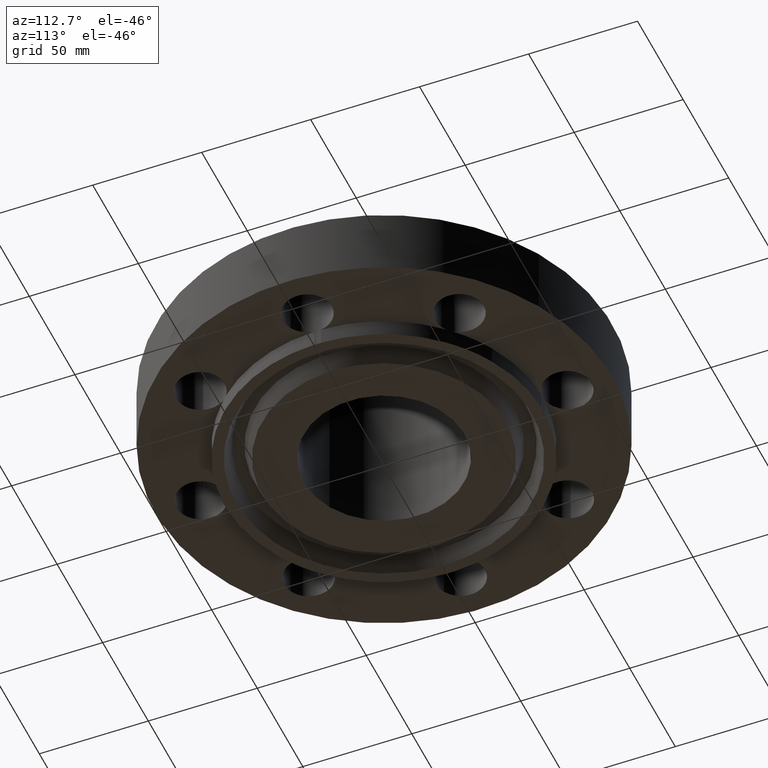
[diagram: clean part render]
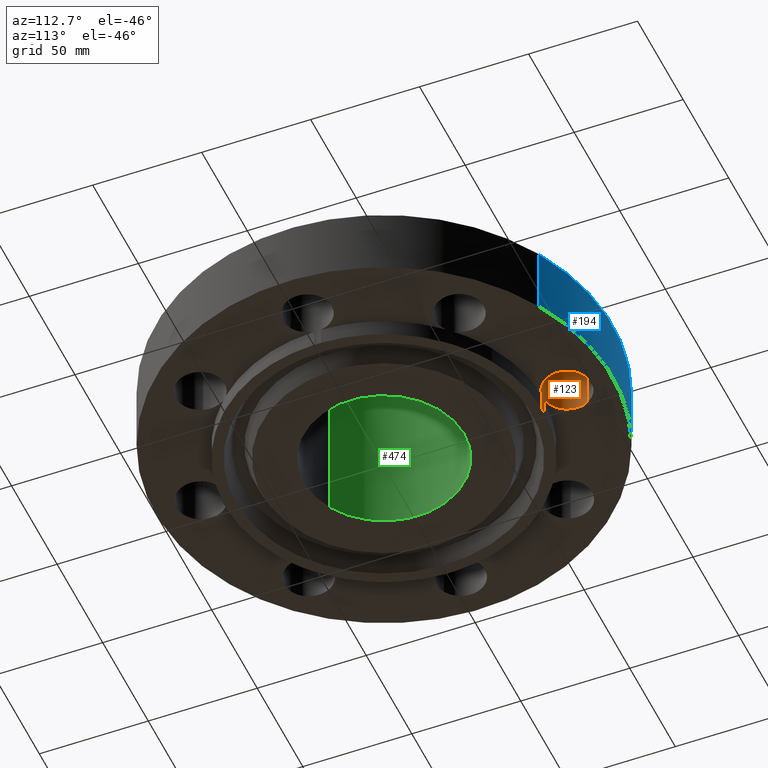
[diagram: same view with three faces highlighted in distinct colors, each labeled with its STEP entity id]
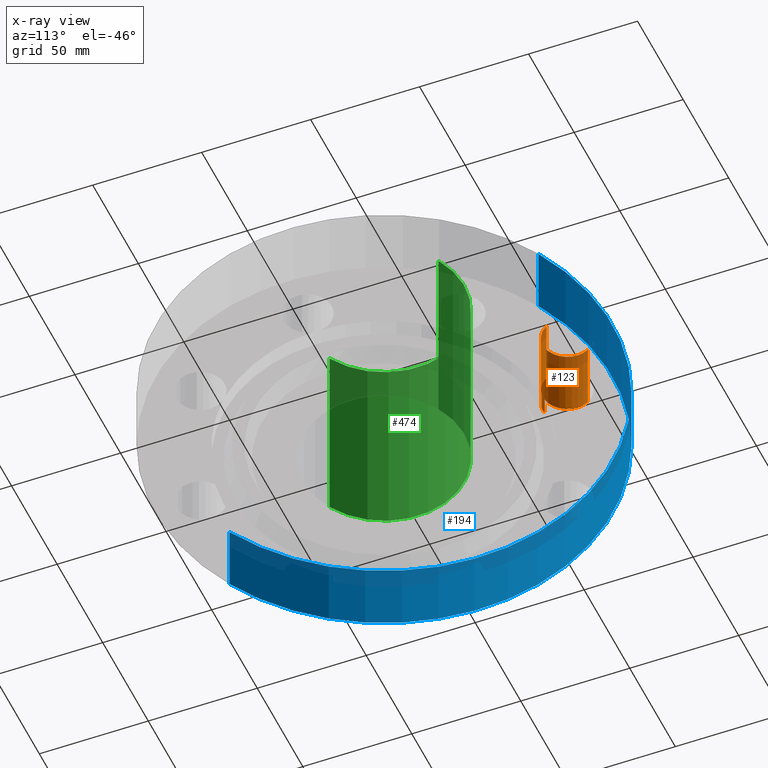
[diagram: x-ray of the same camera — body ghosted, the three highlighted faces saturated]
A machine part, auxiliary view with three faces highlighted in distinct colors.
The next image is the same camera in x-ray (body ghosted, the three faces saturated) — at least one of them is partly hidden behind the body in this view.
Their STEP definitions:

[orange] entity #123 — the highlighted cylindrical surface (edge-blend (fillet) strip) has radius 11.176 mm, axis along (0, -0, -1).
#38=AXIS2_PLACEMENT_3D('Cylinder Axis2P3D',#35,#36,#37) ;
#77=AXIS2_PLACEMENT_3D('Circle Axis2P3D',#75,#76,$) ;
#91=AXIS2_PLACEMENT_3D('Circle Axis2P3D',#89,#90,$) ;
#105=AXIS2_PLACEMENT_3D('Circle Axis2P3D',#103,#104,$) ;
#110=AXIS2_PLACEMENT_3D('Circle Axis2P3D',#108,#109,$) ;
#35=CARTESIAN_POINT('Axis2P3D Location',(0.,3.31000000001,1.24606299213)) ;
#40=CARTESIAN_POINT('Line Origine',(-0.386136327233,3.520947237,0.468500000002)) ;
#44=CARTESIAN_POINT('Vertex',(-0.386136327233,3.520947237,0.)) ;
#46=CARTESIAN_POINT('Vertex',(-0.386136327233,3.520947237,1.25000000001)) ;
#53=CARTESIAN_POINT('Vertex',(0.386136327233,3.09905276303,0.)) ;
#56=CARTESIAN_POINT('Line Origine',(0.386136327233,3.09905276303,0.468500000002)) ;
#60=CARTESIAN_POINT('Vertex',(0.386136327233,3.09905276303,1.25000000001)) ;
#75=CARTESIAN_POINT('Axis2P3D Location',(0.,3.31000000001,0.)) ;
#79=CARTESIAN_POINT('Vertex',(0.0616409036851,2.87433912388,2.79741234551E-016)) ;
#82=CARTESIAN_POINT('Line Origine',(0.0616409036851,2.87433912388,0.468500000002)) ;
#86=CARTESIAN_POINT('Vertex',(0.0616409036851,2.87433912388,-0.313000000001)) ;
#89=CARTESIAN_POINT('Axis2P3D Location',(0.,3.31000000001,-0.313000000001)) ;
#93=CARTESIAN_POINT('Vertex',(-0.0616409036851,2.87433912388,-0.313000000001)) ;
#96=CARTESIAN_POINT('Line Origine',(-0.0616409036851,2.87433912388,0.468500000002)) ;
#100=CARTESIAN_POINT('Vertex',(-0.0616409036851,2.87433912388,2.79741234551E-016)) ;
#103=CARTESIAN_POINT('Axis2P3D Location',(0.,3.31000000001,0.)) ;
#108=CARTESIAN_POINT('Axis2P3D Location',(0.,3.31000000001,1.25000000001)) ;
#36=DIRECTION('Axis2P3D Direction',(0.,-0.,-0.0393700787402)) ;
#37=DIRECTION('Axis2P3D XDirection',(0.0345504945626,-0.0188750212049,0.)) ;
#41=DIRECTION('Vector Direction',(0.,0.,-0.0393700787402)) ;
#57=DIRECTION('Vector Direction',(0.,0.,-0.0393700787402)) ;
#76=DIRECTION('Axis2P3D Direction',(0.,-0.,-0.0393700787402)) ;
#83=DIRECTION('Vector Direction',(0.,0.,-0.0393700787402)) ;
#90=DIRECTION('Axis2P3D Direction',(0.,-0.,-0.0393700787402)) ;
#97=DIRECTION('Vector Direction',(0.,0.,-0.0393700787402)) ;
#104=DIRECTION('Axis2P3D Direction',(0.,-0.,-0.0393700787402)) ;
#109=DIRECTION('Axis2P3D Direction',(0.,-0.,-0.0393700787402)) ;
#42=VECTOR('Line Direction',#41,0.0393700787402) ;
#58=VECTOR('Line Direction',#57,0.0393700787402) ;
#84=VECTOR('Line Direction',#83,0.0393700787402) ;
#98=VECTOR('Line Direction',#97,0.0393700787402) ;
#114=ORIENTED_EDGE('',*,*,#62,.F.) ;
#115=ORIENTED_EDGE('',*,*,#81,.T.) ;
#116=ORIENTED_EDGE('',*,*,#88,.T.) ;
#117=ORIENTED_EDGE('',*,*,#95,.T.) ;
#118=ORIENTED_EDGE('',*,*,#102,.F.) ;
#119=ORIENTED_EDGE('',*,*,#107,.T.) ;
#120=ORIENTED_EDGE('',*,*,#48,.T.) ;
#121=ORIENTED_EDGE('',*,*,#112,.F.) ;
#123=ADVANCED_FACE('PartBody',(#122),#39,.F.) ;
#78=CIRCLE('generated circle',#77,0.440000000002) ;
#92=CIRCLE('generated circle',#91,0.440000000002) ;
#106=CIRCLE('generated circle',#105,0.440000000002) ;
#111=CIRCLE('generated circle',#110,0.440000000002) ;
#39=CYLINDRICAL_SURFACE('generated cylinder',#38,0.440000000002) ;
#48=EDGE_CURVE('',#45,#47,#43,.F.) ;
#62=EDGE_CURVE('',#54,#61,#59,.F.) ;
#81=EDGE_CURVE('',#54,#80,#78,.T.) ;
#88=EDGE_CURVE('',#80,#87,#85,.T.) ;
#95=EDGE_CURVE('',#87,#94,#92,.T.) ;
#102=EDGE_CURVE('',#101,#94,#99,.T.) ;
#107=EDGE_CURVE('',#101,#45,#106,.T.) ;
#112=EDGE_CURVE('',#61,#47,#111,.T.) ;
#113=EDGE_LOOP('',(#114,#115,#116,#117,#118,#119,#120,#121)) ;
#122=FACE_OUTER_BOUND('',#113,.T.) ;
#43=LINE('Line',#40,#42) ;
#59=LINE('Line',#56,#58) ;
#85=LINE('Line',#82,#84) ;
#99=LINE('Line',#96,#98) ;
#45=VERTEX_POINT('',#44) ;
#47=VERTEX_POINT('',#46) ;
#54=VERTEX_POINT('',#53) ;
#61=VERTEX_POINT('',#60) ;
#80=VERTEX_POINT('',#79) ;
#87=VERTEX_POINT('',#86) ;
#94=VERTEX_POINT('',#93) ;
#101=VERTEX_POINT('',#100) ;

[blue] entity #194 — the highlighted cylindrical surface (partial cylindrical patch) has radius 104.775 mm, axis along (0, 0, -1).
#158=AXIS2_PLACEMENT_3D('Cylinder Axis2P3D',#155,#156,#157) ;
#162=AXIS2_PLACEMENT_3D('Circle Axis2P3D',#160,#161,$) ;
#178=AXIS2_PLACEMENT_3D('Circle Axis2P3D',#176,#177,$) ;
#155=CARTESIAN_POINT('Axis2P3D Location',(0.,0.,1.46850000001)) ;
#160=CARTESIAN_POINT('Axis2P3D Location',(0.,0.,0.)) ;
#164=CARTESIAN_POINT('Vertex',(-1.97763034675,-3.62002806781,0.)) ;
#166=CARTESIAN_POINT('Vertex',(1.97763034675,3.62002806781,0.)) ;
#169=CARTESIAN_POINT('Line Origine',(-1.97763034675,-3.62002806781,0.625000000003)) ;
#173=CARTESIAN_POINT('Vertex',(-1.97763034675,-3.62002806781,1.25000000001)) ;
#176=CARTESIAN_POINT('Axis2P3D Location',(0.,0.,1.25000000001)) ;
#180=CARTESIAN_POINT('Vertex',(1.97763034675,3.62002806781,1.25000000001)) ;
#183=CARTESIAN_POINT('Line Origine',(1.97763034675,3.62002806781,0.625000000003)) ;
#156=DIRECTION('Axis2P3D Direction',(0.,0.,-0.0393700787402)) ;
#157=DIRECTION('Axis2P3D XDirection',(0.0188750212049,0.0345504945626,0.)) ;
#161=DIRECTION('Axis2P3D Direction',(0.,0.,-0.0393700787402)) ;
#170=DIRECTION('Vector Direction',(0.,0.,-0.0393700787402)) ;
#177=DIRECTION('Axis2P3D Direction',(0.,0.,-0.0393700787402)) ;
#184=DIRECTION('Vector Direction',(0.,0.,-0.0393700787402)) ;
#171=VECTOR('Line Direction',#170,0.0393700787402) ;
#185=VECTOR('Line Direction',#184,0.0393700787402) ;
#189=ORIENTED_EDGE('',*,*,#168,.F.) ;
#190=ORIENTED_EDGE('',*,*,#175,.T.) ;
#191=ORIENTED_EDGE('',*,*,#182,.T.) ;
#192=ORIENTED_EDGE('',*,*,#187,.F.) ;
#194=ADVANCED_FACE('PartBody',(#193),#159,.T.) ;
#163=CIRCLE('generated circle',#162,4.12500000002) ;
#179=CIRCLE('generated circle',#178,4.12500000002) ;
#159=CYLINDRICAL_SURFACE('generated cylinder',#158,4.12500000002) ;
#168=EDGE_CURVE('',#165,#167,#163,.T.) ;
#175=EDGE_CURVE('',#165,#174,#172,.F.) ;
#182=EDGE_CURVE('',#174,#181,#179,.T.) ;
#187=EDGE_CURVE('',#167,#181,#186,.F.) ;
#188=EDGE_LOOP('',(#189,#190,#191,#192)) ;
#193=FACE_OUTER_BOUND('',#188,.T.) ;
#172=LINE('Line',#169,#171) ;
#186=LINE('Line',#183,#185) ;
#165=VERTEX_POINT('',#164) ;
#167=VERTEX_POINT('',#166) ;
#174=VERTEX_POINT('',#173) ;
#181=VERTEX_POINT('',#180) ;

[green] entity #474 — the highlighted cylindrical surface (partial cylindrical patch) has radius 36.83 mm, axis along (0, 0, -1).
#419=AXIS2_PLACEMENT_3D('Circle Axis2P3D',#417,#418,$) ;
#447=AXIS2_PLACEMENT_3D('Cylinder Axis2P3D',#444,#445,#446) ;
#458=AXIS2_PLACEMENT_3D('Circle Axis2P3D',#456,#457,$) ;
#417=CARTESIAN_POINT('Axis2P3D Location',(0.,0.,3.25000000001)) ;
#421=CARTESIAN_POINT('Vertex',(-0.695167030979,-1.27249471475,3.25000000001)) ;
#423=CARTESIAN_POINT('Vertex',(0.695167030979,1.27249471475,3.25000000001)) ;
#444=CARTESIAN_POINT('Axis2P3D Location',(0.,0.,1.46850000001)) ;
#449=CARTESIAN_POINT('Line Origine',(-0.695167030979,-1.27249471475,1.46850000001)) ;
#453=CARTESIAN_POINT('Vertex',(-0.695167030979,-1.27249471475,-0.313000000001)) ;
#456=CARTESIAN_POINT('Axis2P3D Location',(0.,0.,-0.313000000001)) ;
#460=CARTESIAN_POINT('Vertex',(0.695167030979,1.27249471475,-0.313000000001)) ;
#463=CARTESIAN_POINT('Line Origine',(0.695167030979,1.27249471475,1.46850000001)) ;
#418=DIRECTION('Axis2P3D Direction',(0.,0.,-0.0393700787402)) ;
#445=DIRECTION('Axis2P3D Direction',(0.,0.,-0.0393700787402)) ;
#446=DIRECTION('Axis2P3D XDirection',(0.0188750212049,0.0345504945626,0.)) ;
#450=DIRECTION('Vector Direction',(0.,0.,-0.0393700787402)) ;
#457=DIRECTION('Axis2P3D Direction',(0.,0.,-0.0393700787402)) ;
#464=DIRECTION('Vector Direction',(0.,0.,-0.0393700787402)) ;
#451=VECTOR('Line Direction',#450,0.0393700787402) ;
#465=VECTOR('Line Direction',#464,0.0393700787402) ;
#469=ORIENTED_EDGE('',*,*,#425,.F.) ;
#470=ORIENTED_EDGE('',*,*,#455,.T.) ;
#471=ORIENTED_EDGE('',*,*,#462,.T.) ;
#472=ORIENTED_EDGE('',*,*,#467,.F.) ;
#474=ADVANCED_FACE('PartBody',(#473),#448,.F.) ;
#420=CIRCLE('generated circle',#419,1.45000000001) ;
#459=CIRCLE('generated circle',#458,1.45000000001) ;
#448=CYLINDRICAL_SURFACE('generated cylinder',#447,1.45000000001) ;
#425=EDGE_CURVE('',#422,#424,#420,.T.) ;
#455=EDGE_CURVE('',#422,#454,#452,.T.) ;
#462=EDGE_CURVE('',#454,#461,#459,.T.) ;
#467=EDGE_CURVE('',#424,#461,#466,.T.) ;
#468=EDGE_LOOP('',(#469,#470,#471,#472)) ;
#473=FACE_OUTER_BOUND('',#468,.T.) ;
#452=LINE('Line',#449,#451) ;
#466=LINE('Line',#463,#465) ;
#422=VERTEX_POINT('',#421) ;
#424=VERTEX_POINT('',#423) ;
#454=VERTEX_POINT('',#453) ;
#461=VERTEX_POINT('',#460) ;